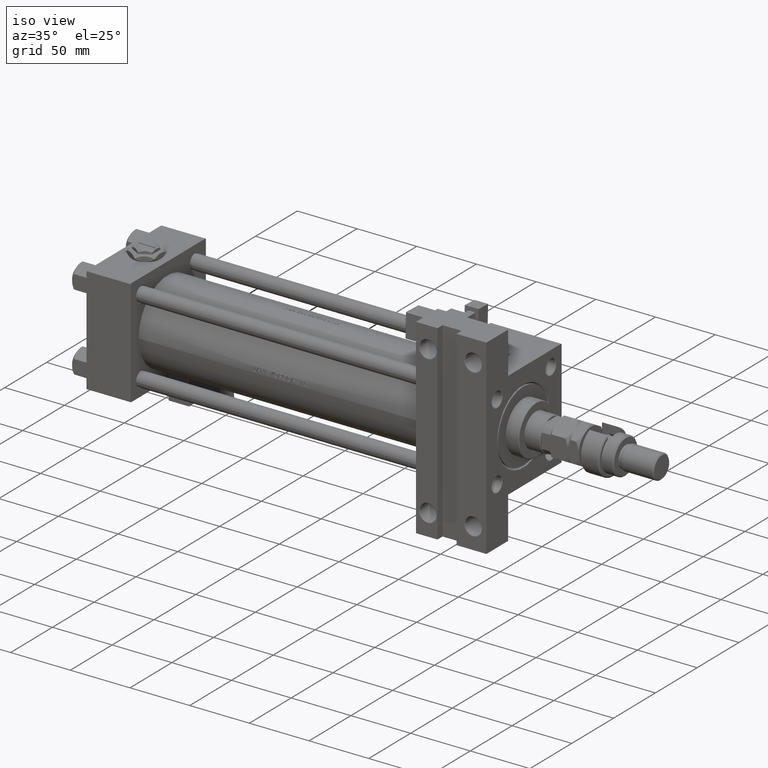
[diagram: clean part render]
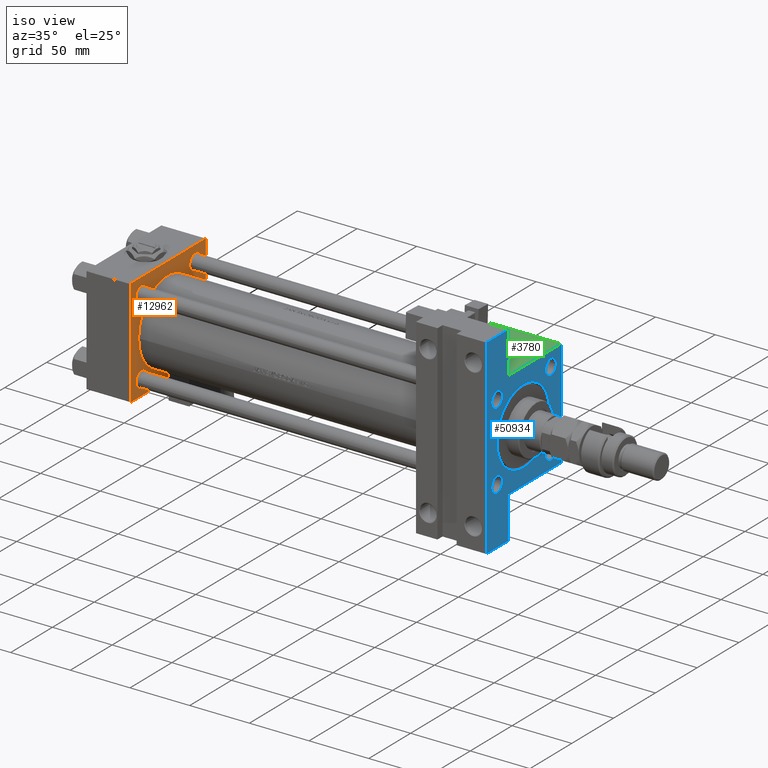
[diagram: same view with three faces highlighted in distinct colors, each labeled with its STEP entity id]
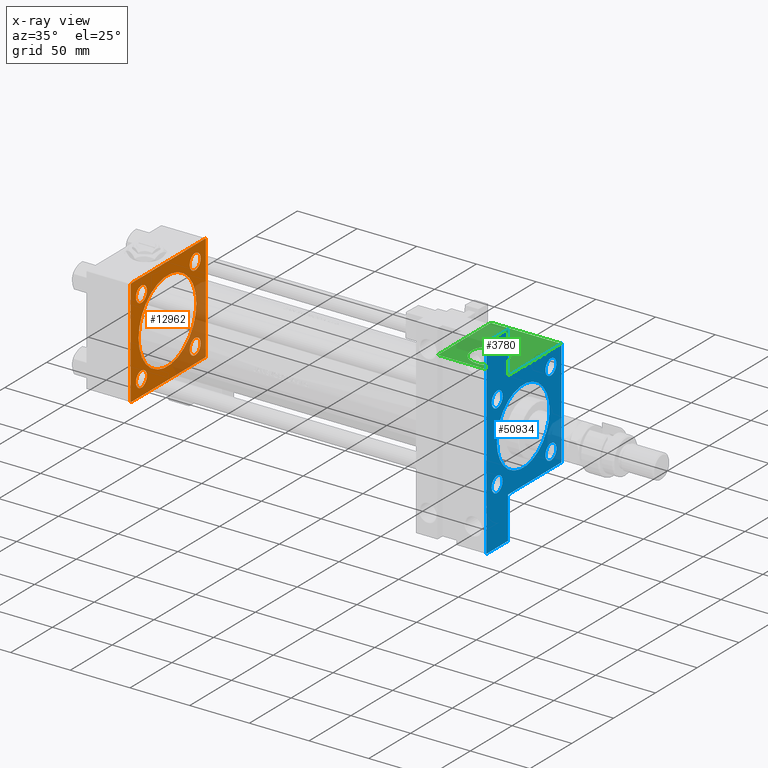
[diagram: x-ray of the same camera — body ghosted, the three highlighted faces saturated]
A machine part, iso view with three faces highlighted in distinct colors.
The next image is the same camera in x-ray (body ghosted, the three faces saturated) — at least one of them is partly hidden behind the body in this view.
Their STEP definitions:

[orange] entity #12962 — the highlighted planar face has unit normal (-1, 0, -0).
#41 = EDGE_CURVE ( 'NONE', #10219, #45396, #48421, .T. ) ;
#195 = DIRECTION ( 'NONE',  ( 0.000000000000000000, 0.000000000000000000, 1.000000000000000000 ) ) ;
#908 = DIRECTION ( 'NONE',  ( 0.000000000000000000, 0.000000000000000000, 1.000000000000000000 ) ) ;
#1578 = AXIS2_PLACEMENT_3D ( 'NONE', #12405, #41485, #195 ) ;
#2286 = VERTEX_POINT ( 'NONE', #2979 ) ;
#2490 = DIRECTION ( 'NONE',  ( 0.000000000000000000, -1.000000000000000000, -1.541976423090495633E-16 ) ) ;
#2979 = CARTESIAN_POINT ( 'NONE',  ( 37.00000000000000000, -32.14999999999997726, 38.64999999999993463 ) ) ;
#2999 = DIRECTION ( 'NONE',  ( -0.000000000000000000, -0.7071067811865425767, -0.7071067811865524577 ) ) ;
#3345 = VERTEX_POINT ( 'NONE', #34647 ) ;
#3913 = VECTOR ( 'NONE', #21852, 1000.000000000000000 ) ;
#4126 = ORIENTED_EDGE ( 'NONE', *, *, #4889, .T. ) ;
#4603 = VERTEX_POINT ( 'NONE', #33981 ) ;
#4889 = EDGE_CURVE ( 'NONE', #5994, #51981, #15412, .T. ) ;
#5013 = VERTEX_POINT ( 'NONE', #11507 ) ;
#5208 = CARTESIAN_POINT ( 'NONE',  ( 37.00000000000000000, 44.99999999999998579, 44.50000000000001421 ) ) ;
#5401 = CARTESIAN_POINT ( 'NONE',  ( 37.00000000000000000, 32.14999999999999147, -25.64999999999994529 ) ) ;
#5483 = CIRCLE ( 'NONE', #32911, 34.49999999999999289 ) ;
#5690 = AXIS2_PLACEMENT_3D ( 'NONE', #33388, #50256, #29520 ) ;
#5895 = CARTESIAN_POINT ( 'NONE',  ( 37.00000000000000711, 0.000000000000000000, 33.49999999999998579 ) ) ;
#5994 = VERTEX_POINT ( 'NONE', #5208 ) ;
#6942 = CARTESIAN_POINT ( 'NONE',  ( 37.00000000000000000, 44.99999999999998579, -44.99999999999998579 ) ) ;
#7158 = CARTESIAN_POINT ( 'NONE',  ( 37.00000000000000000, 32.14999999999999147, -32.15000000000000568 ) ) ;
#7525 = VERTEX_POINT ( 'NONE', #5895 ) ;
#7952 = ORIENTED_EDGE ( 'NONE', *, *, #49538, .T. ) ;
#8737 = FACE_BOUND ( 'NONE', #14643, .T. ) ;
#9459 = VECTOR ( 'NONE', #43223, 1000.000000000000000 ) ;
#10219 = VERTEX_POINT ( 'NONE', #16553 ) ;
#10284 = VECTOR ( 'NONE', #24378, 1000.000000000000114 ) ;
#10679 = EDGE_CURVE ( 'NONE', #7525, #38453, #21353, .T. ) ;
#10714 = ORIENTED_EDGE ( 'NONE', *, *, #42889, .T. ) ;
#10989 = CIRCLE ( 'NONE', #5690, 6.500000000000061284 ) ;
#11012 = EDGE_CURVE ( 'NONE', #45794, #2286, #34601, .T. ) ;
#11507 = CARTESIAN_POINT ( 'NONE',  ( 37.00000000000000000, -32.14999999999997726, -25.65000000000009095 ) ) ;
#11954 = CARTESIAN_POINT ( 'NONE',  ( 37.00000000000000000, -44.49999999999995737, -45.00000000000000000 ) ) ;
#12070 = CIRCLE ( 'NONE', #45665, 6.500000000000061284 ) ;
#12405 = CARTESIAN_POINT ( 'NONE',  ( 37.00000000000000000, -32.14999999999997726, 32.15000000000001279 ) ) ;
#12962 = ADVANCED_FACE ( 'NONE', ( #38378, #29800, #8737, #51086, #22041, #51889 ), #13711, .F. ) ;
#13711 = PLANE ( 'NONE',  #36568 ) ;
#14378 = ORIENTED_EDGE ( 'NONE', *, *, #15885, .T. ) ;
#14394 = CARTESIAN_POINT ( 'NONE',  ( 37.00000000000000000, -44.49999999999998579, -45.00000000000000000 ) ) ;
#14643 = EDGE_LOOP ( 'NONE', ( #28871, #22112 ) ) ;
#14668 = ORIENTED_EDGE ( 'NONE', *, *, #15155, .T. ) ;
#15155 = EDGE_CURVE ( 'NONE', #15663, #44843, #10989, .T. ) ;
#15162 = CARTESIAN_POINT ( 'NONE',  ( 37.00000000000000000, 44.49999999999998579, -44.99999999999998579 ) ) ;
#15217 = CARTESIAN_POINT ( 'NONE',  ( 37.00000000000000000, -45.00000000000000711, 44.49999999999997158 ) ) ;
#15412 = LINE ( 'NONE', #27306, #20316 ) ;
#15663 = VERTEX_POINT ( 'NONE', #53471 ) ;
#15885 = EDGE_CURVE ( 'NONE', #37320, #4603, #48135, .T. ) ;
#16553 = CARTESIAN_POINT ( 'NONE',  ( 37.00000000000000000, -45.00000000000000000, -44.49999999999995737 ) ) ;
#17301 = CARTESIAN_POINT ( 'NONE',  ( 37.00000000000000000, -32.14999999999997726, -32.15000000000001279 ) ) ;
#17979 = LINE ( 'NONE', #18520, #3913 ) ;
#18160 = EDGE_CURVE ( 'NONE', #5994, #3345, #43019, .T. ) ;
#18329 = LINE ( 'NONE', #35473, #9459 ) ;
#18520 = CARTESIAN_POINT ( 'NONE',  ( 37.00000000000000000, -45.00000000000000711, 45.00000000000000000 ) ) ;
#18672 = EDGE_CURVE ( 'NONE', #39939, #45396, #32425, .T. ) ;
#18721 = CIRCLE ( 'NONE', #41712, 6.500000000000061284 ) ;
#18829 = CIRCLE ( 'NONE', #48884, 6.499999999999922728 ) ;
#19306 = DIRECTION ( 'NONE',  ( 0.000000000000000000, -0.7071067811865474617, 0.7071067811865474617 ) ) ;
#19942 = VECTOR ( 'NONE', #2999, 1000.000000000000114 ) ;
#19960 = LINE ( 'NONE', #37635, #10284 ) ;
#20073 = EDGE_CURVE ( 'NONE', #22694, #23021, #12070, .T. ) ;
#20316 = VECTOR ( 'NONE', #19306, 1000.000000000000114 ) ;
#20693 = ORIENTED_EDGE ( 'NONE', *, *, #18672, .F. ) ;
#20815 = ORIENTED_EDGE ( 'NONE', *, *, #34454, .T. ) ;
#21353 = CIRCLE ( 'NONE', #46104, 34.49999999999999289 ) ;
#21852 = DIRECTION ( 'NONE',  ( 0.000000000000000000, 7.709882115452476934E-17, -1.000000000000000000 ) ) ;
#22041 = FACE_BOUND ( 'NONE', #27659, .T. ) ;
#22089 = DIRECTION ( 'NONE',  ( 0.000000000000000000, 0.000000000000000000, 1.000000000000000000 ) ) ;
#22112 = ORIENTED_EDGE ( 'NONE', *, *, #50896, .T. ) ;
#22694 = VERTEX_POINT ( 'NONE', #40809 ) ;
#23021 = VERTEX_POINT ( 'NONE', #23316 ) ;
#23316 = CARTESIAN_POINT ( 'NONE',  ( 37.00000000000000000, 32.14999999999999147, 38.65000000000006963 ) ) ;
#23606 = CARTESIAN_POINT ( 'NONE',  ( 37.00000000000000711, 0.000000000000000000, -1.000000000000007772 ) ) ;
#23878 = CARTESIAN_POINT ( 'NONE',  ( 37.00000000000000000, 44.49999999999998579, 45.00000000000001421 ) ) ;
#24064 = ORIENTED_EDGE ( 'NONE', *, *, #36990, .T. ) ;
#24078 = DIRECTION ( 'NONE',  ( -1.000000000000000000, 0.000000000000000000, -0.000000000000000000 ) ) ;
#24190 = DIRECTION ( 'NONE',  ( 0.000000000000000000, 0.000000000000000000, 1.000000000000000000 ) ) ;
#24340 = DIRECTION ( 'NONE',  ( 0.000000000000000000, 0.000000000000000000, 1.000000000000000000 ) ) ;
#24378 = DIRECTION ( 'NONE',  ( -0.000000000000000000, 0.7071067811865474617, 0.7071067811865474617 ) ) ;
#25883 = DIRECTION ( 'NONE',  ( 1.000000000000000000, -0.000000000000000000, 0.000000000000000000 ) ) ;
#26423 = CARTESIAN_POINT ( 'NONE',  ( 37.00000000000000000, 44.99999999999998579, 45.00000000000001421 ) ) ;
#27086 = EDGE_LOOP ( 'NONE', ( #20693, #50210, #37901, #4126, #7952, #14378, #10714, #54510 ) ) ;
#27204 = CARTESIAN_POINT ( 'NONE',  ( 37.00000000000000000, 32.14999999999999147, 32.15000000000000568 ) ) ;
#27306 = CARTESIAN_POINT ( 'NONE',  ( 37.00000000000000000, 44.49999999999998579, 45.00000000000001421 ) ) ;
#27418 = EDGE_LOOP ( 'NONE', ( #27587, #24064 ) ) ;
#27587 = ORIENTED_EDGE ( 'NONE', *, *, #20073, .T. ) ;
#27659 = EDGE_LOOP ( 'NONE', ( #45363, #34819 ) ) ;
#28871 = ORIENTED_EDGE ( 'NONE', *, *, #11012, .T. ) ;
#29477 = AXIS2_PLACEMENT_3D ( 'NONE', #27204, #52653, #24190 ) ;
#29520 = DIRECTION ( 'NONE',  ( 0.000000000000000000, 0.000000000000000000, 1.000000000000000000 ) ) ;
#29800 = FACE_BOUND ( 'NONE', #31376, .T. ) ;
#30021 = CARTESIAN_POINT ( 'NONE',  ( 37.00000000000000711, 0.000000000000000000, -1.000000000000007772 ) ) ;
#30393 = AXIS2_PLACEMENT_3D ( 'NONE', #32364, #49240, #36794 ) ;
#31376 = EDGE_LOOP ( 'NONE', ( #14668, #20815 ) ) ;
#31833 = DIRECTION ( 'NONE',  ( 0.000000000000000000, 0.7071067811865474617, -0.7071067811865474617 ) ) ;
#32176 = DIRECTION ( 'NONE',  ( 0.000000000000000000, 0.000000000000000000, 1.000000000000000000 ) ) ;
#32364 = CARTESIAN_POINT ( 'NONE',  ( 37.00000000000000000, -32.14999999999997726, -32.15000000000001279 ) ) ;
#32425 = LINE ( 'NONE', #6942, #49149 ) ;
#32911 = AXIS2_PLACEMENT_3D ( 'NONE', #23606, #40469, #32176 ) ;
#33299 = CARTESIAN_POINT ( 'NONE',  ( 37.00000000000000000, -32.14999999999997726, 32.15000000000001279 ) ) ;
#33388 = CARTESIAN_POINT ( 'NONE',  ( 37.00000000000000000, 32.14999999999999147, -32.15000000000000568 ) ) ;
#33981 = CARTESIAN_POINT ( 'NONE',  ( 37.00000000000000000, -45.00000000000000711, 44.49999999999997158 ) ) ;
#34454 = EDGE_CURVE ( 'NONE', #44843, #15663, #18721, .T. ) ;
#34601 = CIRCLE ( 'NONE', #50533, 6.499999999999922728 ) ;
#34647 = CARTESIAN_POINT ( 'NONE',  ( 37.00000000000000000, 44.99999999999998579, -44.49999999999995737 ) ) ;
#34819 = ORIENTED_EDGE ( 'NONE', *, *, #34963, .F. ) ;
#34963 = EDGE_CURVE ( 'NONE', #38453, #7525, #5483, .T. ) ;
#35020 = CARTESIAN_POINT ( 'NONE',  ( 37.00000000000000000, 0.000000000000000000, 0.000000000000000000 ) ) ;
#35071 = CARTESIAN_POINT ( 'NONE',  ( 37.00000000000000000, 32.14999999999999147, 32.15000000000000568 ) ) ;
#35121 = ORIENTED_EDGE ( 'NONE', *, *, #38445, .T. ) ;
#35473 = CARTESIAN_POINT ( 'NONE',  ( 37.00000000000000000, 44.99999999999998579, 45.00000000000001421 ) ) ;
#36568 = AXIS2_PLACEMENT_3D ( 'NONE', #35020, #38912, #42517 ) ;
#36794 = DIRECTION ( 'NONE',  ( 0.000000000000000000, 0.000000000000000000, 1.000000000000000000 ) ) ;
#36990 = EDGE_CURVE ( 'NONE', #23021, #22694, #52425, .T. ) ;
#37013 = CARTESIAN_POINT ( 'NONE',  ( 37.00000000000000000, -32.14999999999997726, 25.65000000000009095 ) ) ;
#37320 = VERTEX_POINT ( 'NONE', #50962 ) ;
#37635 = CARTESIAN_POINT ( 'NONE',  ( 37.00000000000000000, 44.99999999999998579, -44.49999999999998579 ) ) ;
#37901 = ORIENTED_EDGE ( 'NONE', *, *, #18160, .F. ) ;
#38378 = FACE_BOUND ( 'NONE', #52819, .T. ) ;
#38445 = EDGE_CURVE ( 'NONE', #40692, #5013, #40926, .T. ) ;
#38453 = VERTEX_POINT ( 'NONE', #45362 ) ;
#38912 = DIRECTION ( 'NONE',  ( -1.000000000000000000, 0.000000000000000000, -0.000000000000000000 ) ) ;
#39939 = VERTEX_POINT ( 'NONE', #15162 ) ;
#40217 = EDGE_CURVE ( 'NONE', #5013, #40692, #18829, .T. ) ;
#40469 = DIRECTION ( 'NONE',  ( 1.000000000000000000, -0.000000000000000000, 0.000000000000000000 ) ) ;
#40692 = VERTEX_POINT ( 'NONE', #47909 ) ;
#40809 = CARTESIAN_POINT ( 'NONE',  ( 37.00000000000000000, 32.14999999999999147, 25.64999999999994529 ) ) ;
#40926 = CIRCLE ( 'NONE', #30393, 6.499999999999922728 ) ;
#41418 = CIRCLE ( 'NONE', #1578, 6.499999999999922728 ) ;
#41485 = DIRECTION ( 'NONE',  ( -1.000000000000000000, 0.000000000000000000, -0.000000000000000000 ) ) ;
#41603 = DIRECTION ( 'NONE',  ( -1.000000000000000000, 0.000000000000000000, -0.000000000000000000 ) ) ;
#41712 = AXIS2_PLACEMENT_3D ( 'NONE', #7158, #24078, #24340 ) ;
#42517 = DIRECTION ( 'NONE',  ( -0.000000000000000000, 0.000000000000000000, 1.000000000000000000 ) ) ;
#42889 = EDGE_CURVE ( 'NONE', #4603, #10219, #17979, .T. ) ;
#43019 = LINE ( 'NONE', #26423, #53001 ) ;
#43223 = DIRECTION ( 'NONE',  ( 0.000000000000000000, -1.000000000000000000, -1.541976423090495387E-16 ) ) ;
#44646 = EDGE_CURVE ( 'NONE', #39939, #3345, #19960, .T. ) ;
#44843 = VERTEX_POINT ( 'NONE', #5401 ) ;
#45362 = CARTESIAN_POINT ( 'NONE',  ( 37.00000000000000711, 4.225031457058366556E-15, -35.50000000000000711 ) ) ;
#45363 = ORIENTED_EDGE ( 'NONE', *, *, #10679, .F. ) ;
#45396 = VERTEX_POINT ( 'NONE', #11954 ) ;
#45598 = DIRECTION ( 'NONE',  ( -1.000000000000000000, 0.000000000000000000, -0.000000000000000000 ) ) ;
#45665 = AXIS2_PLACEMENT_3D ( 'NONE', #35071, #52488, #22089 ) ;
#45721 = ORIENTED_EDGE ( 'NONE', *, *, #40217, .T. ) ;
#45794 = VERTEX_POINT ( 'NONE', #37013 ) ;
#46104 = AXIS2_PLACEMENT_3D ( 'NONE', #30021, #25883, #51310 ) ;
#47413 = VECTOR ( 'NONE', #31833, 1000.000000000000114 ) ;
#47909 = CARTESIAN_POINT ( 'NONE',  ( 37.00000000000000000, -32.14999999999997726, -38.64999999999993463 ) ) ;
#48135 = LINE ( 'NONE', #15217, #19942 ) ;
#48421 = LINE ( 'NONE', #14394, #47413 ) ;
#48884 = AXIS2_PLACEMENT_3D ( 'NONE', #17301, #45598, #908 ) ;
#49149 = VECTOR ( 'NONE', #2490, 1000.000000000000000 ) ;
#49240 = DIRECTION ( 'NONE',  ( -1.000000000000000000, 0.000000000000000000, -0.000000000000000000 ) ) ;
#49362 = DIRECTION ( 'NONE',  ( 0.000000000000000000, 0.000000000000000000, 1.000000000000000000 ) ) ;
#49538 = EDGE_CURVE ( 'NONE', #51981, #37320, #18329, .T. ) ;
#50210 = ORIENTED_EDGE ( 'NONE', *, *, #44646, .T. ) ;
#50256 = DIRECTION ( 'NONE',  ( -1.000000000000000000, 0.000000000000000000, -0.000000000000000000 ) ) ;
#50533 = AXIS2_PLACEMENT_3D ( 'NONE', #33299, #41603, #49362 ) ;
#50896 = EDGE_CURVE ( 'NONE', #2286, #45794, #41418, .T. ) ;
#50962 = CARTESIAN_POINT ( 'NONE',  ( 37.00000000000000000, -44.49999999999995737, 45.00000000000000000 ) ) ;
#51086 = FACE_BOUND ( 'NONE', #27418, .T. ) ;
#51310 = DIRECTION ( 'NONE',  ( 0.000000000000000000, 0.000000000000000000, 1.000000000000000000 ) ) ;
#51589 = DIRECTION ( 'NONE',  ( 0.000000000000000000, 0.000000000000000000, -1.000000000000000000 ) ) ;
#51889 = FACE_OUTER_BOUND ( 'NONE', #27086, .T. ) ;
#51981 = VERTEX_POINT ( 'NONE', #23878 ) ;
#52425 = CIRCLE ( 'NONE', #29477, 6.500000000000061284 ) ;
#52488 = DIRECTION ( 'NONE',  ( -1.000000000000000000, 0.000000000000000000, -0.000000000000000000 ) ) ;
#52653 = DIRECTION ( 'NONE',  ( -1.000000000000000000, 0.000000000000000000, -0.000000000000000000 ) ) ;
#52819 = EDGE_LOOP ( 'NONE', ( #35121, #45721 ) ) ;
#53001 = VECTOR ( 'NONE', #51589, 1000.000000000000000 ) ;
#53471 = CARTESIAN_POINT ( 'NONE',  ( 37.00000000000000000, 32.14999999999999147, -38.65000000000006963 ) ) ;
#54510 = ORIENTED_EDGE ( 'NONE', *, *, #41, .T. ) ;

[blue] entity #50934 — the highlighted planar face has unit normal (-1, 0, -0).
#285 = LINE ( 'NONE', #41307, #35008 ) ;
#304 = AXIS2_PLACEMENT_3D ( 'NONE', #26835, #48399, #47859 ) ;
#722 = DIRECTION ( 'NONE',  ( 0.000000000000000000, 0.000000000000000000, 1.000000000000000000 ) ) ;
#1365 = ORIENTED_EDGE ( 'NONE', *, *, #8991, .F. ) ;
#1386 = CARTESIAN_POINT ( 'NONE',  ( 334.9999999999999432, -45.00000000000000000, 44.99999999999998579 ) ) ;
#1974 = ORIENTED_EDGE ( 'NONE', *, *, #39533, .T. ) ;
#2662 = VECTOR ( 'NONE', #9610, 1000.000000000000000 ) ;
#2961 = VERTEX_POINT ( 'NONE', #10591 ) ;
#3306 = EDGE_CURVE ( 'NONE', #18298, #45712, #47915, .T. ) ;
#3373 = DIRECTION ( 'NONE',  ( -1.000000000000000000, -0.000000000000000000, -0.000000000000000000 ) ) ;
#3647 = VECTOR ( 'NONE', #45944, 1000.000000000000000 ) ;
#3823 = FACE_BOUND ( 'NONE', #30336, .T. ) ;
#3910 = DIRECTION ( 'NONE',  ( 0.000000000000000000, 0.000000000000000000, -1.000000000000000000 ) ) ;
#3978 = VERTEX_POINT ( 'NONE', #49375 ) ;
#4265 = EDGE_LOOP ( 'NONE', ( #45795, #40536 ) ) ;
#4312 = CIRCLE ( 'NONE', #20288, 6.499999999999950262 ) ;
#4884 = CARTESIAN_POINT ( 'NONE',  ( 334.9999999999999432, -80.00000000000004263, -19.00000000000000000 ) ) ;
#5368 = ORIENTED_EDGE ( 'NONE', *, *, #47443, .T. ) ;
#5577 = ORIENTED_EDGE ( 'NONE', *, *, #8349, .F. ) ;
#6191 = ORIENTED_EDGE ( 'NONE', *, *, #15736, .T. ) ;
#7039 = LINE ( 'NONE', #11455, #19052 ) ;
#7317 = EDGE_LOOP ( 'NONE', ( #48139, #45046 ) ) ;
#7481 = LINE ( 'NONE', #29082, #3647 ) ;
#7804 = DIRECTION ( 'NONE',  ( -1.000000000000000000, -0.000000000000000000, -0.000000000000000000 ) ) ;
#7979 = DIRECTION ( 'NONE',  ( -1.000000000000000000, 0.000000000000000000, -0.000000000000000000 ) ) ;
#7994 = DIRECTION ( 'NONE',  ( -1.000000000000000000, -0.000000000000000000, -0.000000000000000000 ) ) ;
#8083 = ORIENTED_EDGE ( 'NONE', *, *, #3306, .T. ) ;
#8349 = EDGE_CURVE ( 'NONE', #42032, #29189, #46916, .T. ) ;
#8858 = CARTESIAN_POINT ( 'NONE',  ( 334.9999999999999432, -80.00000000000004263, -19.00000000000000000 ) ) ;
#8991 = EDGE_CURVE ( 'NONE', #29189, #3978, #47540, .T. ) ;
#8994 = CARTESIAN_POINT ( 'NONE',  ( 334.9999999999999432, 79.99999999999998579, -19.00000000000000000 ) ) ;
#9422 = AXIS2_PLACEMENT_3D ( 'NONE', #43085, #42549, #46687 ) ;
#9472 = ORIENTED_EDGE ( 'NONE', *, *, #14367, .T. ) ;
#9580 = DIRECTION ( 'NONE',  ( -1.000000000000000000, -0.000000000000000000, -0.000000000000000000 ) ) ;
#9610 = DIRECTION ( 'NONE',  ( 0.000000000000000000, -1.000000000000000000, 0.000000000000000000 ) ) ;
#10043 = ORIENTED_EDGE ( 'NONE', *, *, #15814, .T. ) ;
#10179 = CARTESIAN_POINT ( 'NONE',  ( 334.9999999999999432, 32.14999999999999147, -25.65000000000005542 ) ) ;
#10591 = CARTESIAN_POINT ( 'NONE',  ( 334.9999999999999432, 3.857637417314158745E-15, 30.49999999999997158 ) ) ;
#11455 = CARTESIAN_POINT ( 'NONE',  ( 334.9999999999999432, -45.00000000000000000, 44.49999999999998579 ) ) ;
#12208 = EDGE_CURVE ( 'NONE', #33000, #52164, #12890, .T. ) ;
#12246 = VECTOR ( 'NONE', #13608, 1000.000000000000000 ) ;
#12689 = EDGE_LOOP ( 'NONE', ( #53565, #46954 ) ) ;
#12890 = LINE ( 'NONE', #13159, #35551 ) ;
#13159 = CARTESIAN_POINT ( 'NONE',  ( 334.9999999999999432, 44.50000000000001421, 45.00000000000000000 ) ) ;
#13220 = PLANE ( 'NONE',  #17561 ) ;
#13608 = DIRECTION ( 'NONE',  ( 0.000000000000000000, 7.709882115452478166E-17, -1.000000000000000000 ) ) ;
#14367 = EDGE_CURVE ( 'NONE', #49574, #34633, #21661, .T. ) ;
#14574 = CARTESIAN_POINT ( 'NONE',  ( 334.9999999999999432, 0.000000000000000000, -1.000000000000000888 ) ) ;
#15736 = EDGE_CURVE ( 'NONE', #45593, #41743, #36716, .T. ) ;
#15814 = EDGE_CURVE ( 'NONE', #41994, #3978, #51736, .T. ) ;
#15841 = CARTESIAN_POINT ( 'NONE',  ( 334.9999999999999432, 0.000000000000000000, -32.49999999999997158 ) ) ;
#16371 = EDGE_CURVE ( 'NONE', #46001, #18298, #7039, .T. ) ;
#16548 = CARTESIAN_POINT ( 'NONE',  ( 334.9999999999999432, 0.000000000000000000, -1.000000000000000888 ) ) ;
#16809 = ORIENTED_EDGE ( 'NONE', *, *, #38161, .T. ) ;
#16835 = CIRCLE ( 'NONE', #52115, 31.49999999999997158 ) ;
#16938 = CARTESIAN_POINT ( 'NONE',  ( 334.9999999999999432, 32.14999999999999147, -32.15000000000000568 ) ) ;
#17130 = FACE_BOUND ( 'NONE', #12689, .T. ) ;
#17561 = AXIS2_PLACEMENT_3D ( 'NONE', #30119, #7979, #33189 ) ;
#17966 = CARTESIAN_POINT ( 'NONE',  ( 334.9999999999999432, 45.00000000000001421, -45.00000000000000000 ) ) ;
#18001 = CARTESIAN_POINT ( 'NONE',  ( 334.9999999999999432, -32.15000000000001279, -32.15000000000000568 ) ) ;
#18298 = VERTEX_POINT ( 'NONE', #32220 ) ;
#19052 = VECTOR ( 'NONE', #40538, 1000.000000000000114 ) ;
#19119 = EDGE_CURVE ( 'NONE', #51416, #2961, #33271, .T. ) ;
#19264 = DIRECTION ( 'NONE',  ( 0.000000000000000000, -1.000000000000000000, -1.541976423090495140E-16 ) ) ;
#19774 = DIRECTION ( 'NONE',  ( 0.000000000000000000, 0.000000000000000000, 1.000000000000000000 ) ) ;
#19977 = CARTESIAN_POINT ( 'NONE',  ( 334.9999999999999432, 32.14999999999999147, -38.64999999999996305 ) ) ;
#20288 = AXIS2_PLACEMENT_3D ( 'NONE', #33822, #7804, #46531 ) ;
#21661 = CIRCLE ( 'NONE', #43706, 6.499999999999950262 ) ;
#22043 = VECTOR ( 'NONE', #19264, 1000.000000000000000 ) ;
#22963 = VERTEX_POINT ( 'NONE', #42419 ) ;
#24380 = VERTEX_POINT ( 'NONE', #25799 ) ;
#25061 = VECTOR ( 'NONE', #44687, 1000.000000000000000 ) ;
#25799 = CARTESIAN_POINT ( 'NONE',  ( 334.9999999999999432, 32.14999999999999147, 25.65000000000005542 ) ) ;
#26524 = CARTESIAN_POINT ( 'NONE',  ( 334.9999999999999432, 45.00000000000001421, 45.00000000000000000 ) ) ;
#26805 = CIRCLE ( 'NONE', #49803, 6.499999999999950262 ) ;
#26835 = CARTESIAN_POINT ( 'NONE',  ( 334.9999999999999432, 32.14999999999999147, 32.15000000000000568 ) ) ;
#26956 = ORIENTED_EDGE ( 'NONE', *, *, #33164, .T. ) ;
#27824 = LINE ( 'NONE', #44405, #25061 ) ;
#28108 = LINE ( 'NONE', #26524, #22043 ) ;
#28318 = EDGE_CURVE ( 'NONE', #52164, #46001, #28108, .T. ) ;
#28633 = ORIENTED_EDGE ( 'NONE', *, *, #28318, .T. ) ;
#28800 = EDGE_CURVE ( 'NONE', #22963, #46625, #4312, .T. ) ;
#29082 = CARTESIAN_POINT ( 'NONE',  ( 334.9999999999999432, -80.00000000000004263, -19.00000000000000000 ) ) ;
#29189 = VERTEX_POINT ( 'NONE', #40050 ) ;
#29302 = CARTESIAN_POINT ( 'NONE',  ( 334.9999999999999432, 79.99999999999998579, -19.00000000000000000 ) ) ;
#29655 = CARTESIAN_POINT ( 'NONE',  ( 334.9999999999999432, -32.14999999999999147, 25.65000000000004121 ) ) ;
#29902 = DIRECTION ( 'NONE',  ( 0.000000000000000000, 0.000000000000000000, 1.000000000000000000 ) ) ;
#30119 = CARTESIAN_POINT ( 'NONE',  ( 334.9999999999999432, 0.000000000000000000, 0.000000000000000000 ) ) ;
#30336 = EDGE_LOOP ( 'NONE', ( #9472, #16809 ) ) ;
#30517 = EDGE_CURVE ( 'NONE', #2961, #51416, #16835, .T. ) ;
#30706 = DIRECTION ( 'NONE',  ( -1.000000000000000000, -0.000000000000000000, -0.000000000000000000 ) ) ;
#32150 = AXIS2_PLACEMENT_3D ( 'NONE', #18001, #30706, #29902 ) ;
#32220 = CARTESIAN_POINT ( 'NONE',  ( 334.9999999999999432, -45.00000000000000000, 44.49999999999998579 ) ) ;
#32228 = VERTEX_POINT ( 'NONE', #33695 ) ;
#33000 = VERTEX_POINT ( 'NONE', #53507 ) ;
#33164 = EDGE_CURVE ( 'NONE', #45712, #41994, #7481, .T. ) ;
#33189 = DIRECTION ( 'NONE',  ( -0.000000000000000000, 0.000000000000000000, 1.000000000000000000 ) ) ;
#33271 = CIRCLE ( 'NONE', #50909, 31.49999999999997158 ) ;
#33328 = CIRCLE ( 'NONE', #9422, 6.499999999999950262 ) ;
#33695 = CARTESIAN_POINT ( 'NONE',  ( 334.9999999999999432, 32.14999999999999147, 38.64999999999995595 ) ) ;
#33822 = CARTESIAN_POINT ( 'NONE',  ( 334.9999999999999432, -32.14999999999999147, 32.14999999999999147 ) ) ;
#33927 = DIRECTION ( 'NONE',  ( 0.000000000000000000, 0.000000000000000000, -1.000000000000000000 ) ) ;
#34256 = FACE_OUTER_BOUND ( 'NONE', #38076, .T. ) ;
#34633 = VERTEX_POINT ( 'NONE', #36161 ) ;
#34749 = DIRECTION ( 'NONE',  ( 0.000000000000000000, -0.7071067811865474617, 0.7071067811865474617 ) ) ;
#35008 = VECTOR ( 'NONE', #3910, 1000.000000000000000 ) ;
#35419 = DIRECTION ( 'NONE',  ( 0.000000000000000000, 0.000000000000000000, -1.000000000000000000 ) ) ;
#35551 = VECTOR ( 'NONE', #34749, 1000.000000000000114 ) ;
#35747 = CARTESIAN_POINT ( 'NONE',  ( 334.9999999999999432, -32.15000000000001279, -38.64999999999996305 ) ) ;
#36161 = CARTESIAN_POINT ( 'NONE',  ( 334.9999999999999432, -32.15000000000001279, -25.65000000000005542 ) ) ;
#36622 = EDGE_CURVE ( 'NONE', #46625, #22963, #26805, .T. ) ;
#36716 = CIRCLE ( 'NONE', #48177, 6.499999999999950262 ) ;
#36912 = CARTESIAN_POINT ( 'NONE',  ( 334.9999999999999432, -32.15000000000001279, -32.15000000000000568 ) ) ;
#37425 = CARTESIAN_POINT ( 'NONE',  ( 334.9999999999999432, 44.99999999999992895, -19.00000000000000000 ) ) ;
#37684 = DIRECTION ( 'NONE',  ( -1.000000000000000000, -0.000000000000000000, -0.000000000000000000 ) ) ;
#38076 = EDGE_LOOP ( 'NONE', ( #49703, #46445, #28633, #46607, #8083, #26956, #10043, #1365, #5577, #1974 ) ) ;
#38161 = EDGE_CURVE ( 'NONE', #34633, #49574, #45424, .T. ) ;
#38231 = EDGE_CURVE ( 'NONE', #24380, #32228, #52465, .T. ) ;
#38426 = FACE_BOUND ( 'NONE', #4265, .T. ) ;
#38581 = EDGE_LOOP ( 'NONE', ( #6191, #5368 ) ) ;
#39533 = EDGE_CURVE ( 'NONE', #42032, #51480, #27824, .T. ) ;
#40050 = CARTESIAN_POINT ( 'NONE',  ( 334.9999999999999432, 79.99999999999998579, -45.00000000000000000 ) ) ;
#40536 = ORIENTED_EDGE ( 'NONE', *, *, #48843, .T. ) ;
#40538 = DIRECTION ( 'NONE',  ( -0.000000000000000000, -0.7071067811865474617, -0.7071067811865474617 ) ) ;
#41271 = CIRCLE ( 'NONE', #50969, 6.499999999999950262 ) ;
#41307 = CARTESIAN_POINT ( 'NONE',  ( 334.9999999999999432, 45.00000000000001421, 45.00000000000000000 ) ) ;
#41445 = DIRECTION ( 'NONE',  ( -1.000000000000000000, -0.000000000000000000, -0.000000000000000000 ) ) ;
#41743 = VERTEX_POINT ( 'NONE', #10179 ) ;
#41993 = DIRECTION ( 'NONE',  ( 0.000000000000000000, 0.000000000000000000, 1.000000000000000000 ) ) ;
#41994 = VERTEX_POINT ( 'NONE', #4884 ) ;
#42032 = VERTEX_POINT ( 'NONE', #29302 ) ;
#42059 = CARTESIAN_POINT ( 'NONE',  ( 334.9999999999999432, -44.99999999999999289, -18.99999999999997513 ) ) ;
#42419 = CARTESIAN_POINT ( 'NONE',  ( 334.9999999999999432, -32.14999999999999147, 38.64999999999994174 ) ) ;
#42549 = DIRECTION ( 'NONE',  ( -1.000000000000000000, -0.000000000000000000, -0.000000000000000000 ) ) ;
#43085 = CARTESIAN_POINT ( 'NONE',  ( 334.9999999999999432, 32.14999999999999147, 32.15000000000000568 ) ) ;
#43603 = DIRECTION ( 'NONE',  ( -1.000000000000000000, -0.000000000000000000, -0.000000000000000000 ) ) ;
#43706 = AXIS2_PLACEMENT_3D ( 'NONE', #36912, #3373, #19774 ) ;
#43748 = VECTOR ( 'NONE', #35419, 1000.000000000000000 ) ;
#44405 = CARTESIAN_POINT ( 'NONE',  ( 334.9999999999999432, 79.99999999999998579, -19.00000000000000000 ) ) ;
#44417 = EDGE_CURVE ( 'NONE', #33000, #51480, #285, .T. ) ;
#44687 = DIRECTION ( 'NONE',  ( 0.000000000000000000, -1.000000000000000000, 0.000000000000000000 ) ) ;
#45046 = ORIENTED_EDGE ( 'NONE', *, *, #30517, .T. ) ;
#45101 = DIRECTION ( 'NONE',  ( 0.000000000000000000, 0.000000000000000000, 1.000000000000000000 ) ) ;
#45424 = CIRCLE ( 'NONE', #32150, 6.499999999999950262 ) ;
#45593 = VERTEX_POINT ( 'NONE', #19977 ) ;
#45712 = VERTEX_POINT ( 'NONE', #42059 ) ;
#45795 = ORIENTED_EDGE ( 'NONE', *, *, #38231, .T. ) ;
#45915 = CARTESIAN_POINT ( 'NONE',  ( 334.9999999999999432, 32.14999999999999147, -32.15000000000000568 ) ) ;
#45944 = DIRECTION ( 'NONE',  ( -0.000000000000000000, -1.000000000000000000, -0.000000000000000000 ) ) ;
#45986 = VECTOR ( 'NONE', #33927, 1000.000000000000000 ) ;
#46001 = VERTEX_POINT ( 'NONE', #50197 ) ;
#46436 = FACE_BOUND ( 'NONE', #38581, .T. ) ;
#46445 = ORIENTED_EDGE ( 'NONE', *, *, #12208, .T. ) ;
#46531 = DIRECTION ( 'NONE',  ( 0.000000000000000000, 0.000000000000000000, 1.000000000000000000 ) ) ;
#46607 = ORIENTED_EDGE ( 'NONE', *, *, #16371, .T. ) ;
#46625 = VERTEX_POINT ( 'NONE', #29655 ) ;
#46687 = DIRECTION ( 'NONE',  ( 0.000000000000000000, 0.000000000000000000, 1.000000000000000000 ) ) ;
#46708 = FACE_BOUND ( 'NONE', #7317, .T. ) ;
#46916 = LINE ( 'NONE', #8994, #45986 ) ;
#46954 = ORIENTED_EDGE ( 'NONE', *, *, #28800, .T. ) ;
#47443 = EDGE_CURVE ( 'NONE', #41743, #45593, #41271, .T. ) ;
#47540 = LINE ( 'NONE', #17966, #2662 ) ;
#47859 = DIRECTION ( 'NONE',  ( 0.000000000000000000, 0.000000000000000000, 1.000000000000000000 ) ) ;
#47915 = LINE ( 'NONE', #1386, #12246 ) ;
#48139 = ORIENTED_EDGE ( 'NONE', *, *, #19119, .T. ) ;
#48177 = AXIS2_PLACEMENT_3D ( 'NONE', #16938, #37684, #50672 ) ;
#48399 = DIRECTION ( 'NONE',  ( -1.000000000000000000, -0.000000000000000000, -0.000000000000000000 ) ) ;
#48843 = EDGE_CURVE ( 'NONE', #32228, #24380, #33328, .T. ) ;
#49375 = CARTESIAN_POINT ( 'NONE',  ( 334.9999999999999432, -80.00000000000004263, -45.00000000000000000 ) ) ;
#49574 = VERTEX_POINT ( 'NONE', #35747 ) ;
#49703 = ORIENTED_EDGE ( 'NONE', *, *, #44417, .F. ) ;
#49803 = AXIS2_PLACEMENT_3D ( 'NONE', #52174, #43603, #51630 ) ;
#50197 = CARTESIAN_POINT ( 'NONE',  ( 334.9999999999999432, -44.49999999999997158, 44.99999999999998579 ) ) ;
#50402 = CARTESIAN_POINT ( 'NONE',  ( 334.9999999999999432, 44.50000000000001421, 45.00000000000000000 ) ) ;
#50672 = DIRECTION ( 'NONE',  ( 0.000000000000000000, 0.000000000000000000, 1.000000000000000000 ) ) ;
#50909 = AXIS2_PLACEMENT_3D ( 'NONE', #14574, #9580, #722 ) ;
#50934 = ADVANCED_FACE ( 'NONE', ( #38426, #17130, #3823, #46436, #46708, #34256 ), #13220, .F. ) ;
#50969 = AXIS2_PLACEMENT_3D ( 'NONE', #45915, #7994, #45101 ) ;
#51416 = VERTEX_POINT ( 'NONE', #15841 ) ;
#51480 = VERTEX_POINT ( 'NONE', #37425 ) ;
#51630 = DIRECTION ( 'NONE',  ( 0.000000000000000000, 0.000000000000000000, 1.000000000000000000 ) ) ;
#51736 = LINE ( 'NONE', #8858, #43748 ) ;
#52115 = AXIS2_PLACEMENT_3D ( 'NONE', #16548, #41445, #41993 ) ;
#52164 = VERTEX_POINT ( 'NONE', #50402 ) ;
#52174 = CARTESIAN_POINT ( 'NONE',  ( 334.9999999999999432, -32.14999999999999147, 32.14999999999999147 ) ) ;
#52465 = CIRCLE ( 'NONE', #304, 6.499999999999950262 ) ;
#53507 = CARTESIAN_POINT ( 'NONE',  ( 334.9999999999999432, 45.00000000000001421, 44.50000000000000000 ) ) ;
#53565 = ORIENTED_EDGE ( 'NONE', *, *, #36622, .T. ) ;

[green] entity #3780 — the highlighted planar face has unit normal (0, 0, -1).
#696 = CARTESIAN_POINT ( 'NONE',  ( 305.9999999999999432, -45.00000000000000000, -3.469446951953614978E-15 ) ) ;
#926 = CARTESIAN_POINT ( 'NONE',  ( 334.9999999999999432, -45.00000000000000000, 44.99999999999998579 ) ) ;
#1386 = CARTESIAN_POINT ( 'NONE',  ( 334.9999999999999432, -45.00000000000000000, 44.99999999999998579 ) ) ;
#2127 = VERTEX_POINT ( 'NONE', #14630 ) ;
#2222 = CARTESIAN_POINT ( 'NONE',  ( 305.9999999999999432, -45.00000000000000000, -15.00000000000002842 ) ) ;
#3306 = EDGE_CURVE ( 'NONE', #18298, #45712, #47915, .T. ) ;
#3780 = ADVANCED_FACE ( 'NONE', ( #12607, #8440 ), #4283, .F. ) ;
#4283 = PLANE ( 'NONE',  #30817 ) ;
#5273 = EDGE_CURVE ( 'NONE', #12111, #39307, #10819, .T. ) ;
#6723 = CARTESIAN_POINT ( 'NONE',  ( 275.9999999999999432, -45.00000000000000000, -19.00000000000000000 ) ) ;
#7093 = ORIENTED_EDGE ( 'NONE', *, *, #3306, .F. ) ;
#7881 = VECTOR ( 'NONE', #28393, 1000.000000000000000 ) ;
#7891 = DIRECTION ( 'NONE',  ( 0.000000000000000000, -1.000000000000000000, -8.673617379884036705E-17 ) ) ;
#8440 = FACE_OUTER_BOUND ( 'NONE', #31760, .T. ) ;
#10701 = EDGE_CURVE ( 'NONE', #39307, #45712, #23924, .T. ) ;
#10819 = LINE ( 'NONE', #49593, #24769 ) ;
#12111 = VERTEX_POINT ( 'NONE', #33135 ) ;
#12139 = ORIENTED_EDGE ( 'NONE', *, *, #30641, .F. ) ;
#12246 = VECTOR ( 'NONE', #13608, 1000.000000000000000 ) ;
#12607 = FACE_BOUND ( 'NONE', #37087, .T. ) ;
#13608 = DIRECTION ( 'NONE',  ( 0.000000000000000000, 7.709882115452478166E-17, -1.000000000000000000 ) ) ;
#14111 = CIRCLE ( 'NONE', #35334, 15.00000000000002487 ) ;
#14630 = CARTESIAN_POINT ( 'NONE',  ( 305.9999999999999432, -45.00000000000000000, 15.00000000000002132 ) ) ;
#14756 = DIRECTION ( 'NONE',  ( 1.000000000000000000, 0.000000000000000000, 0.000000000000000000 ) ) ;
#18224 = LINE ( 'NONE', #49413, #7881 ) ;
#18298 = VERTEX_POINT ( 'NONE', #32220 ) ;
#21205 = DIRECTION ( 'NONE',  ( -0.000000000000000000, 1.000000000000000000, 7.709882115452478166E-17 ) ) ;
#21783 = DIRECTION ( 'NONE',  ( 0.000000000000000000, -1.000000000000000000, -8.673617379884036705E-17 ) ) ;
#22035 = CARTESIAN_POINT ( 'NONE',  ( 275.9999999999999432, -45.00000000000000000, -19.00000000000000000 ) ) ;
#23072 = VERTEX_POINT ( 'NONE', #2222 ) ;
#23924 = LINE ( 'NONE', #6723, #44307 ) ;
#24268 = DIRECTION ( 'NONE',  ( 0.000000000000000000, 0.000000000000000000, -1.000000000000000000 ) ) ;
#24769 = VECTOR ( 'NONE', #31883, 1000.000000000000000 ) ;
#28359 = EDGE_CURVE ( 'NONE', #18298, #12111, #18224, .T. ) ;
#28393 = DIRECTION ( 'NONE',  ( -1.000000000000000000, 0.000000000000000000, 0.000000000000000000 ) ) ;
#28942 = CARTESIAN_POINT ( 'NONE',  ( 305.9999999999999432, -45.00000000000000000, -3.469446951953614978E-15 ) ) ;
#30641 = EDGE_CURVE ( 'NONE', #2127, #23072, #14111, .T. ) ;
#30817 = AXIS2_PLACEMENT_3D ( 'NONE', #926, #21205, #38080 ) ;
#31656 = ORIENTED_EDGE ( 'NONE', *, *, #10701, .T. ) ;
#31760 = EDGE_LOOP ( 'NONE', ( #7093, #42528, #36193, #31656 ) ) ;
#31883 = DIRECTION ( 'NONE',  ( 0.000000000000000000, 7.709882115452478166E-17, -1.000000000000000000 ) ) ;
#32220 = CARTESIAN_POINT ( 'NONE',  ( 334.9999999999999432, -45.00000000000000000, 44.49999999999998579 ) ) ;
#33135 = CARTESIAN_POINT ( 'NONE',  ( 275.9999999999999432, -45.00000000000000000, 44.49999999999998579 ) ) ;
#33470 = EDGE_CURVE ( 'NONE', #23072, #2127, #47852, .T. ) ;
#35334 = AXIS2_PLACEMENT_3D ( 'NONE', #696, #21783, #51376 ) ;
#36193 = ORIENTED_EDGE ( 'NONE', *, *, #5273, .T. ) ;
#37087 = EDGE_LOOP ( 'NONE', ( #39384, #12139 ) ) ;
#38080 = DIRECTION ( 'NONE',  ( 0.000000000000000000, -7.709882115452478166E-17, 1.000000000000000000 ) ) ;
#39307 = VERTEX_POINT ( 'NONE', #22035 ) ;
#39384 = ORIENTED_EDGE ( 'NONE', *, *, #33470, .F. ) ;
#42059 = CARTESIAN_POINT ( 'NONE',  ( 334.9999999999999432, -44.99999999999999289, -18.99999999999997513 ) ) ;
#42528 = ORIENTED_EDGE ( 'NONE', *, *, #28359, .T. ) ;
#44307 = VECTOR ( 'NONE', #14756, 1000.000000000000000 ) ;
#45226 = AXIS2_PLACEMENT_3D ( 'NONE', #28942, #7891, #24268 ) ;
#45712 = VERTEX_POINT ( 'NONE', #42059 ) ;
#47852 = CIRCLE ( 'NONE', #45226, 15.00000000000002487 ) ;
#47915 = LINE ( 'NONE', #1386, #12246 ) ;
#49413 = CARTESIAN_POINT ( 'NONE',  ( 334.9999999999999432, -45.00000000000000000, 44.49999999999998579 ) ) ;
#49593 = CARTESIAN_POINT ( 'NONE',  ( 275.9999999999999432, -45.00000000000000000, 44.99999999999998579 ) ) ;
#51376 = DIRECTION ( 'NONE',  ( 0.000000000000000000, 0.000000000000000000, -1.000000000000000000 ) ) ;